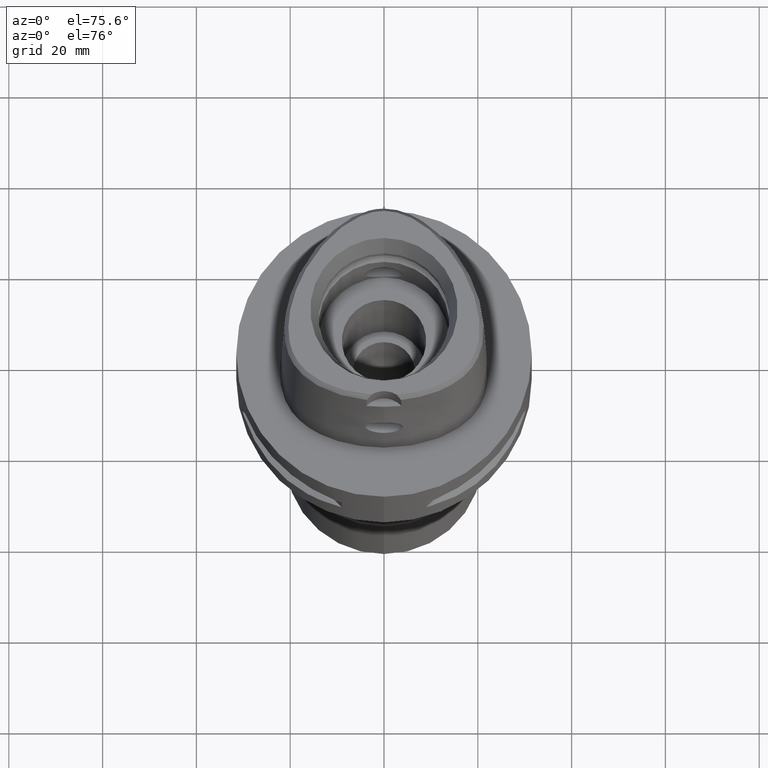
[diagram: clean part render]
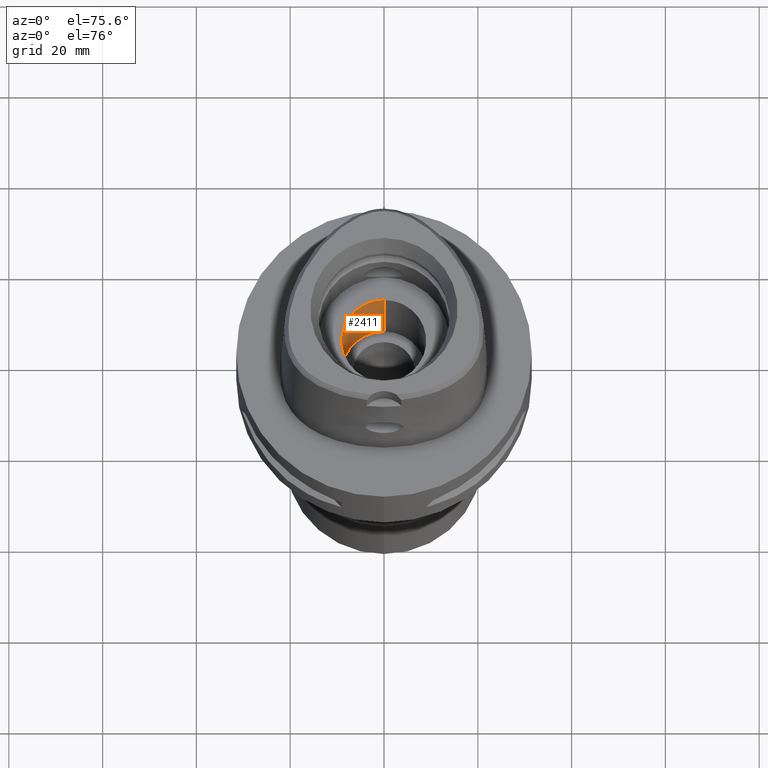
[diagram: same view with one face highlighted and labeled with its STEP entity id]
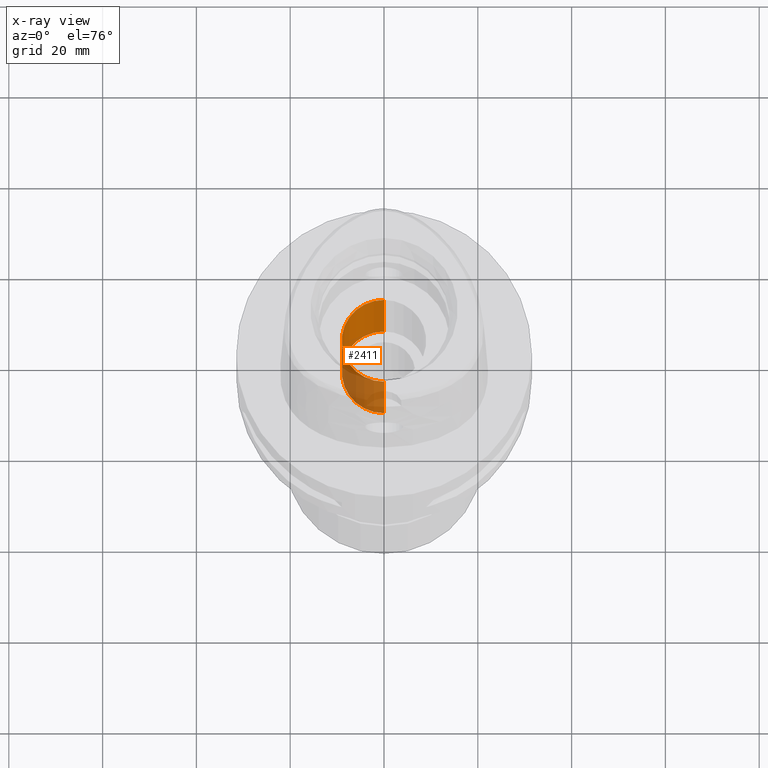
[diagram: x-ray of the same camera — body ghosted, the highlighted face saturated]
A machine part, auxiliary view. The second image highlights one B-rep face of the part: STEP entity #2411.
The next image is the same camera in x-ray: the body ghosted, the highlighted face saturated — about 46% of this face is hidden behind the body in this view.
In plain terms, the highlighted cylindrical surface (partial cylindrical patch) has radius 9 mm, axis along (0, 0, -1).
Its self-contained STEP definition (entity closure, byte-faithful):
#152 = ORIENTED_EDGE ( 'NONE', *, *, #1319, .T. ) ;
#272 = CARTESIAN_POINT ( 'NONE',  ( 0.0000000000000000000, 9.000000000000000000, 11.00000000000000000 ) ) ;
#281 = CARTESIAN_POINT ( 'NONE',  ( 0.0000000000000000000, 0.0000000000000000000, 11.00000000000000000 ) ) ;
#549 = VERTEX_POINT ( 'NONE', #2928 ) ;
#610 = ORIENTED_EDGE ( 'NONE', *, *, #2592, .T. ) ;
#632 = LINE ( 'NONE', #970, #2759 ) ;
#897 = DIRECTION ( 'NONE',  ( 0.0000000000000000000, 0.0000000000000000000, -1.000000000000000000 ) ) ;
#970 = CARTESIAN_POINT ( 'NONE',  ( 0.0000000000000000000, -9.000000000000000000, 11.00000000000000000 ) ) ;
#977 = CIRCLE ( 'NONE', #3066, 9.000000000000000000 ) ;
#1028 = ORIENTED_EDGE ( 'NONE', *, *, #1938, .T. ) ;
#1044 = VECTOR ( 'NONE', #3180, 1000.000000000000000 ) ;
#1319 = EDGE_CURVE ( 'NONE', #1742, #1702, #3951, .T. ) ;
#1647 = CARTESIAN_POINT ( 'NONE',  ( 0.0000000000000000000, 9.000000000000000000, -16.00000000000000000 ) ) ;
#1702 = VERTEX_POINT ( 'NONE', #3083 ) ;
#1742 = VERTEX_POINT ( 'NONE', #2465 ) ;
#1747 = DIRECTION ( 'NONE',  ( 0.0000000000000000000, 0.0000000000000000000, -1.000000000000000000 ) ) ;
#1813 = DIRECTION ( 'NONE',  ( 0.0000000000000000000, 0.0000000000000000000, 1.000000000000000000 ) ) ;
#1938 = EDGE_CURVE ( 'NONE', #1702, #3411, #2814, .T. ) ;
#2338 = AXIS2_PLACEMENT_3D ( 'NONE', #2615, #4137, #2525 ) ;
#2365 = DIRECTION ( 'NONE',  ( 0.0000000000000000000, -1.000000000000000000, 0.0000000000000000000 ) ) ;
#2411 = ADVANCED_FACE ( 'NONE', ( #3871 ), #4326, .F. ) ;
#2465 = CARTESIAN_POINT ( 'NONE',  ( 0.0000000000000000000, -9.000000000000000000, -16.00000000000000000 ) ) ;
#2525 = DIRECTION ( 'NONE',  ( 0.0000000000000000000, -1.000000000000000000, 0.0000000000000000000 ) ) ;
#2592 = EDGE_CURVE ( 'NONE', #3411, #549, #977, .T. ) ;
#2615 = CARTESIAN_POINT ( 'NONE',  ( 0.0000000000000000000, 0.0000000000000000000, -16.00000000000000000 ) ) ;
#2759 = VECTOR ( 'NONE', #1747, 1000.000000000000000 ) ;
#2814 = LINE ( 'NONE', #1647, #1044 ) ;
#2913 = AXIS2_PLACEMENT_3D ( 'NONE', #3492, #897, #2365 ) ;
#2928 = CARTESIAN_POINT ( 'NONE',  ( 0.0000000000000000000, -9.000000000000000000, 11.00000000000000000 ) ) ;
#3066 = AXIS2_PLACEMENT_3D ( 'NONE', #281, #1813, #4584 ) ;
#3083 = CARTESIAN_POINT ( 'NONE',  ( 0.0000000000000000000, 9.000000000000000000, -16.00000000000000000 ) ) ;
#3180 = DIRECTION ( 'NONE',  ( 0.0000000000000000000, 0.0000000000000000000, 1.000000000000000000 ) ) ;
#3411 = VERTEX_POINT ( 'NONE', #272 ) ;
#3492 = CARTESIAN_POINT ( 'NONE',  ( 0.0000000000000000000, 0.0000000000000000000, 39.89999999999999858 ) ) ;
#3756 = EDGE_LOOP ( 'NONE', ( #610, #4557, #152, #1028 ) ) ;
#3871 = FACE_OUTER_BOUND ( 'NONE', #3756, .T. ) ;
#3913 = EDGE_CURVE ( 'NONE', #549, #1742, #632, .T. ) ;
#3951 = CIRCLE ( 'NONE', #2338, 9.000000000000000000 ) ;
#4137 = DIRECTION ( 'NONE',  ( 0.0000000000000000000, 0.0000000000000000000, -1.000000000000000000 ) ) ;
#4326 = CYLINDRICAL_SURFACE ( 'NONE', #2913, 9.000000000000000000 ) ;
#4557 = ORIENTED_EDGE ( 'NONE', *, *, #3913, .T. ) ;
#4584 = DIRECTION ( 'NONE',  ( 0.0000000000000000000, 1.000000000000000000, 0.0000000000000000000 ) ) ;